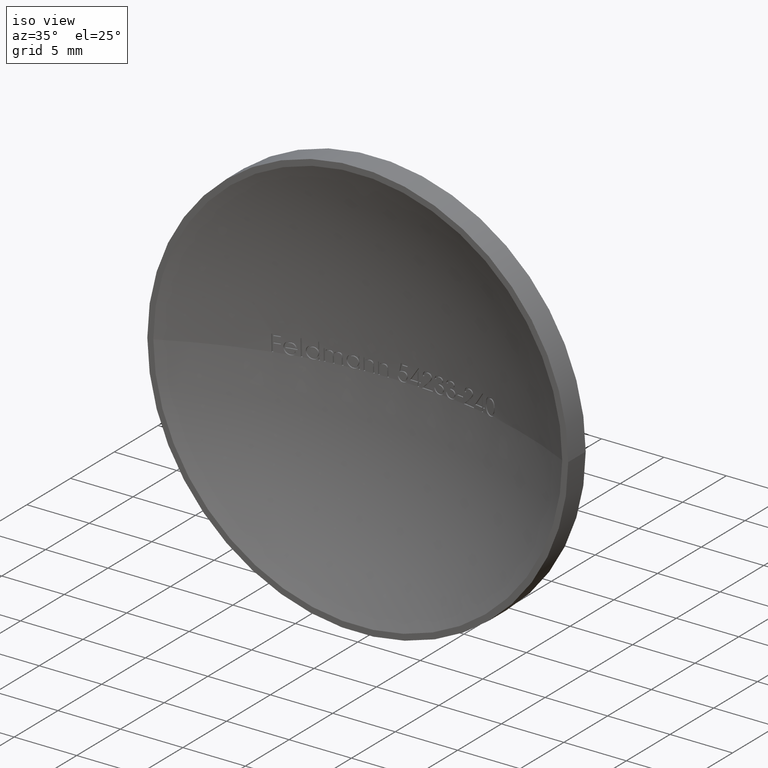
[diagram: clean part render]
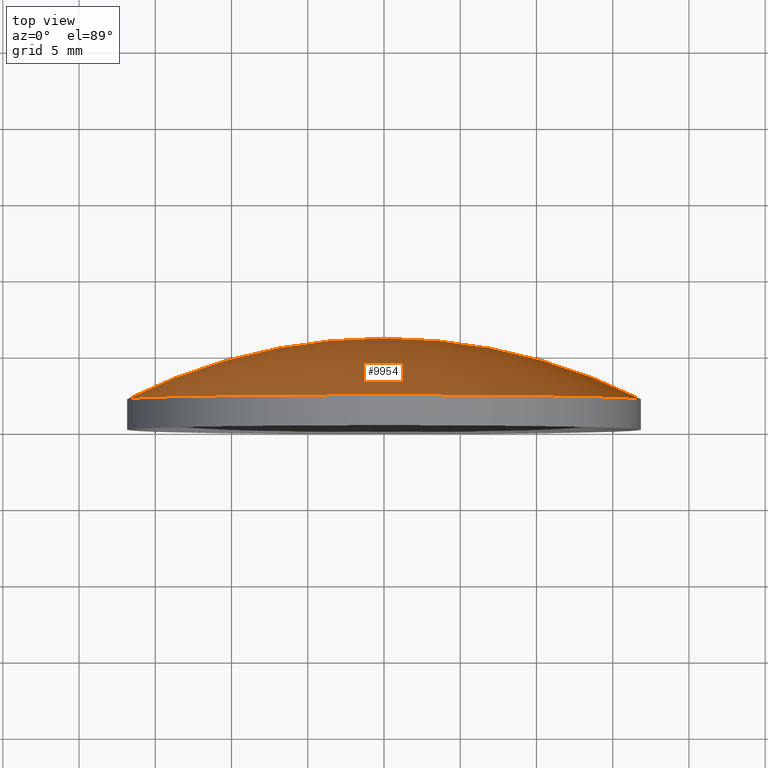
[diagram: tour spotlight — one face highlighted and labeled with its STEP entity id]
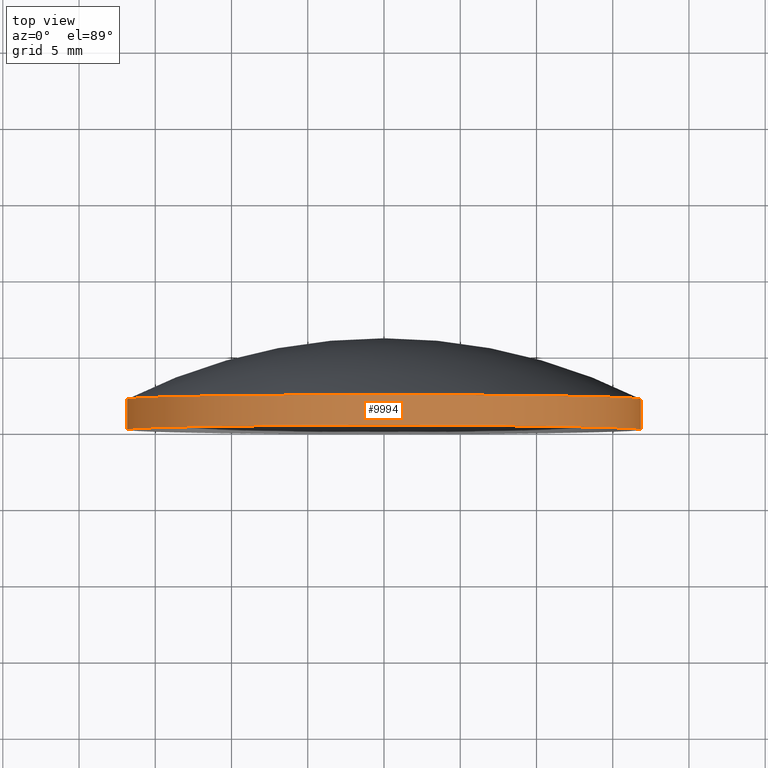
[diagram: tour spotlight — one face highlighted and labeled with its STEP entity id]
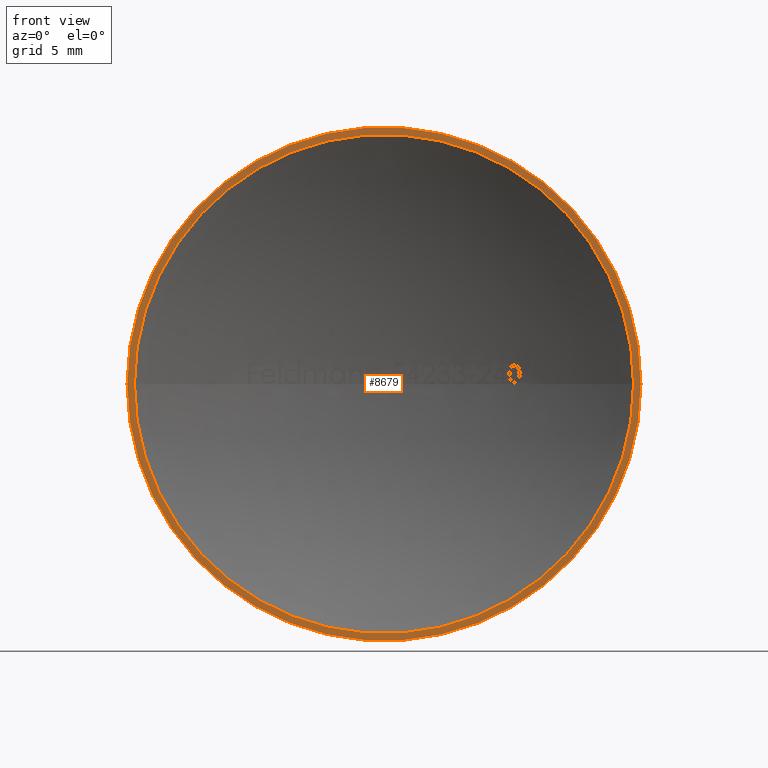
[diagram: tour spotlight — one face highlighted and labeled with its STEP entity id]
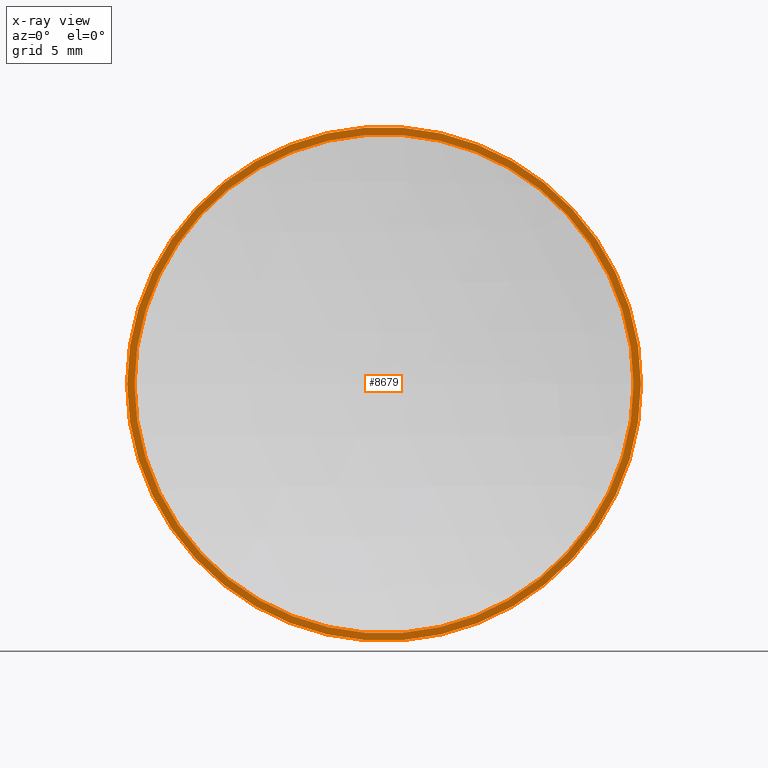
[diagram: x-ray of the same camera — body ghosted, this tour face saturated]
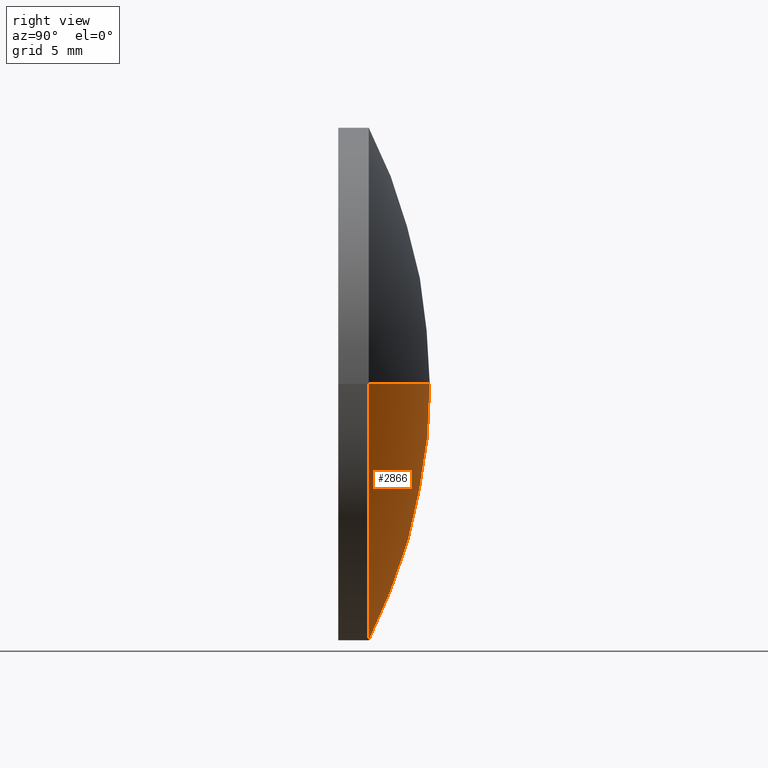
[diagram: tour spotlight — one face highlighted and labeled with its STEP entity id]
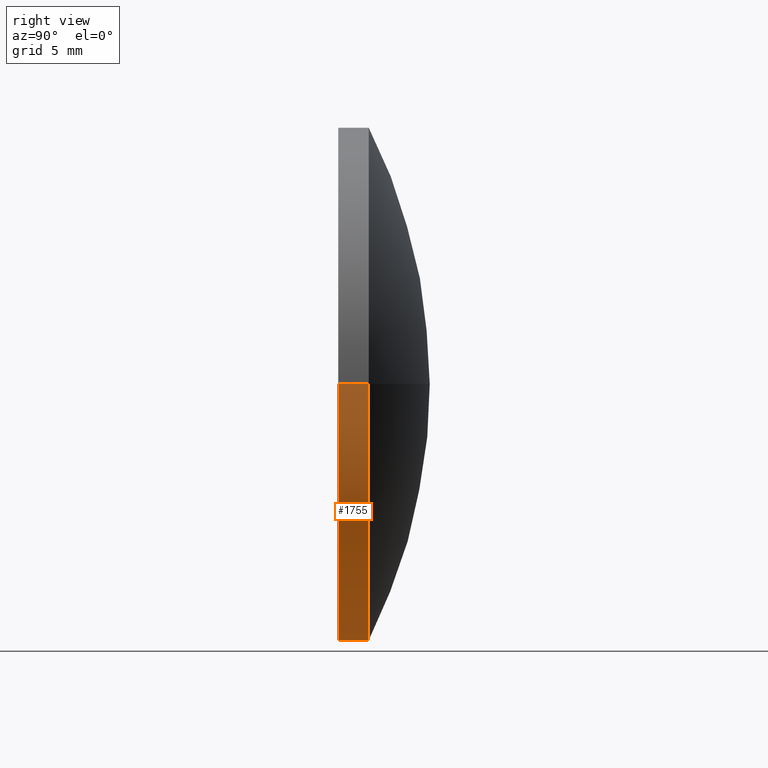
[diagram: tour spotlight — one face highlighted and labeled with its STEP entity id]
A machine part: a face-by-face anatomy tour. The part has 256 B-rep faces; the first image is the clean iso view, then the 5 largest visible faces are spotlighted one at a time (largest first), each with its STEP entity span.

Face 1 — top view, entity #9954. In plain terms, the highlighted spherical surface has radius 37.4903 mm.
Definition (entity closure, byte-faithful):
#810 = CARTESIAN_POINT ( 'NONE',  ( 16.84999999999999100, 1.999999999999994900, 0.0000000000000000000 ) ) ;
#1555 = ORIENTED_EDGE ( 'NONE', *, *, #8923, .T. ) ;
#1677 = CARTESIAN_POINT ( 'NONE',  ( -1.167220775306714700E-014, 2.000000000000093300, 0.0000000000000000000 ) ) ;
#2077 = CARTESIAN_POINT ( 'NONE',  ( 1.167220775306751800E-014, -31.49031249999995200, 0.0000000000000000000 ) ) ;
#3038 = CARTESIAN_POINT ( 'NONE',  ( 1.167220775306751800E-014, -31.49031249999995200, 0.0000000000000000000 ) ) ;
#3289 = ORIENTED_EDGE ( 'NONE', *, *, #5535, .F. ) ;
#3461 = CARTESIAN_POINT ( 'NONE',  ( 2.327651854268892700E-013, 5.999999999999991100, 0.0000000000000000000 ) ) ;
#3491 = AXIS2_PLACEMENT_3D ( 'NONE', #3038, #8222, #4132 ) ;
#3708 = AXIS2_PLACEMENT_3D ( 'NONE', #2077, #9447, #11603 ) ;
#4132 = DIRECTION ( 'NONE',  ( -1.000000000000000000, 0.0000000000000000000, 0.0000000000000000000 ) ) ;
#4885 = AXIS2_PLACEMENT_3D ( 'NONE', #1677, #10043, #11104 ) ;
#5180 = DIRECTION ( 'NONE',  ( 1.000000000000000000, 0.0000000000000000000, -1.224646799147353000E-016 ) ) ;
#5447 = VERTEX_POINT ( 'NONE', #6665 ) ;
#5535 = EDGE_CURVE ( 'NONE', #9889, #5447, #8528, .T. ) ;
#5642 = EDGE_CURVE ( 'NONE', #8751, #9889, #9184, .T. ) ;
#6665 = CARTESIAN_POINT ( 'NONE',  ( -16.85000000000001200, 2.000000000000191800, 2.063529856563290600E-015 ) ) ;
#8222 = DIRECTION ( 'NONE',  ( 0.0000000000000000000, 0.0000000000000000000, -1.000000000000000000 ) ) ;
#8309 = DIRECTION ( 'NONE',  ( 1.224646799147353200E-016, -7.147165931888596700E-031, 1.000000000000000000 ) ) ;
#8528 = CIRCLE ( 'NONE', #4885, 16.85000000000000100 ) ;
#8751 = VERTEX_POINT ( 'NONE', #3461 ) ;
#8923 = EDGE_CURVE ( 'NONE', #8751, #5447, #9144, .T. ) ;
#9144 = CIRCLE ( 'NONE', #11959, 37.49031249999994500 ) ;
#9184 = CIRCLE ( 'NONE', #3491, 37.49031249999994500 ) ;
#9447 = DIRECTION ( 'NONE',  ( -0.0000000000000000000, 0.0000000000000000000, 1.000000000000000000 ) ) ;
#9889 = VERTEX_POINT ( 'NONE', #810 ) ;
#9954 = ADVANCED_FACE ( 'NONE', ( #12576 ), #12895, .T. ) ;
#10043 = DIRECTION ( 'NONE',  ( -5.836103876533815000E-015, -1.000000000000000000, -0.0000000000000000000 ) ) ;
#11104 = DIRECTION ( 'NONE',  ( 1.000000000000000000, -5.842466306331382200E-015, 0.0000000000000000000 ) ) ;
#11398 = CARTESIAN_POINT ( 'NONE',  ( 1.167220775306751800E-014, -31.49031249999995200, 0.0000000000000000000 ) ) ;
#11603 = DIRECTION ( 'NONE',  ( 1.000000000000000000, -5.922719500538483000E-015, 0.0000000000000000000 ) ) ;
#11959 = AXIS2_PLACEMENT_3D ( 'NONE', #11398, #8309, #5180 ) ;
#12576 = FACE_OUTER_BOUND ( 'NONE', #13234, .T. ) ;
#12895 = SPHERICAL_SURFACE ( 'NONE', #3708, 37.49031249999994500 ) ;
#13231 = ORIENTED_EDGE ( 'NONE', *, *, #5642, .F. ) ;
#13234 = EDGE_LOOP ( 'NONE', ( #13231, #1555, #3289 ) ) ;

Face 2 — top view, entity #9994. In plain terms, the highlighted cylindrical surface (partial cylindrical patch) has radius 16.85 mm, axis along (-0, -1, -0).
Definition (entity closure, byte-faithful):
#810 = CARTESIAN_POINT ( 'NONE',  ( 16.84999999999999100, 1.999999999999994900, 0.0000000000000000000 ) ) ;
#1145 = CIRCLE ( 'NONE', #13248, 16.85000000000002300 ) ;
#1270 = DIRECTION ( 'NONE',  ( -5.836103876533815000E-015, -1.000000000000000000, -0.0000000000000000000 ) ) ;
#1677 = CARTESIAN_POINT ( 'NONE',  ( -1.167220775306714700E-014, 2.000000000000093300, 0.0000000000000000000 ) ) ;
#1882 = CARTESIAN_POINT ( 'NONE',  ( 16.85000000000001200, 3.999999999999912500, 0.0000000000000000000 ) ) ;
#1976 = EDGE_CURVE ( 'NONE', #9889, #9375, #7722, .T. ) ;
#2393 = CARTESIAN_POINT ( 'NONE',  ( 0.0000000000000000000, 4.000000000000010700, 0.0000000000000000000 ) ) ;
#2754 = ORIENTED_EDGE ( 'NONE', *, *, #7227, .F. ) ;
#2757 = VECTOR ( 'NONE', #1270, 1000.000000000000000 ) ;
#2783 = EDGE_LOOP ( 'NONE', ( #2856, #4858, #2754, #3403 ) ) ;
#2856 = ORIENTED_EDGE ( 'NONE', *, *, #5535, .T. ) ;
#3296 = DIRECTION ( 'NONE',  ( -5.836103876533815000E-015, -1.000000000000000000, -0.0000000000000000000 ) ) ;
#3403 = ORIENTED_EDGE ( 'NONE', *, *, #1976, .F. ) ;
#3875 = FACE_OUTER_BOUND ( 'NONE', #2783, .T. ) ;
#4858 = ORIENTED_EDGE ( 'NONE', *, *, #9671, .T. ) ;
#4885 = AXIS2_PLACEMENT_3D ( 'NONE', #1677, #10043, #11104 ) ;
#5447 = VERTEX_POINT ( 'NONE', #6665 ) ;
#5522 = LINE ( 'NONE', #8669, #2757 ) ;
#5535 = EDGE_CURVE ( 'NONE', #9889, #5447, #8528, .T. ) ;
#6106 = CARTESIAN_POINT ( 'NONE',  ( 16.84999999999999800, -4.663282616847321200E-015, 0.0000000000000000000 ) ) ;
#6665 = CARTESIAN_POINT ( 'NONE',  ( -16.85000000000001200, 2.000000000000191800, 2.063529856563290600E-015 ) ) ;
#7027 = VERTEX_POINT ( 'NONE', #8850 ) ;
#7057 = CARTESIAN_POINT ( 'NONE',  ( -2.334441550613477400E-014, 9.367506770274758300E-014, 0.0000000000000000000 ) ) ;
#7227 = EDGE_CURVE ( 'NONE', #9375, #7027, #1145, .T. ) ;
#7722 = LINE ( 'NONE', #1882, #10684 ) ;
#7969 = DIRECTION ( 'NONE',  ( -5.836103876533815000E-015, -1.000000000000000000, -0.0000000000000000000 ) ) ;
#8099 = AXIS2_PLACEMENT_3D ( 'NONE', #2393, #3296, #11731 ) ;
#8528 = CIRCLE ( 'NONE', #4885, 16.85000000000000100 ) ;
#8669 = CARTESIAN_POINT ( 'NONE',  ( -16.85000000000001200, 4.000000000000108400, 2.063529856563291400E-015 ) ) ;
#8850 = CARTESIAN_POINT ( 'NONE',  ( -16.85000000000004400, 1.920134180223424900E-013, 2.063529856563293800E-015 ) ) ;
#9375 = VERTEX_POINT ( 'NONE', #6106 ) ;
#9671 = EDGE_CURVE ( 'NONE', #5447, #7027, #5522, .T. ) ;
#9889 = VERTEX_POINT ( 'NONE', #810 ) ;
#9994 = ADVANCED_FACE ( 'NONE', ( #3875 ), #12243, .T. ) ;
#10043 = DIRECTION ( 'NONE',  ( -5.836103876533815000E-015, -1.000000000000000000, -0.0000000000000000000 ) ) ;
#10684 = VECTOR ( 'NONE', #7969, 1000.000000000000000 ) ;
#11104 = DIRECTION ( 'NONE',  ( 1.000000000000000000, -5.842466306331382200E-015, 0.0000000000000000000 ) ) ;
#11363 = DIRECTION ( 'NONE',  ( 1.000000000000000000, -5.836103876533814200E-015, 0.0000000000000000000 ) ) ;
#11731 = DIRECTION ( 'NONE',  ( 1.000000000000000000, -5.816728569299081700E-015, 0.0000000000000000000 ) ) ;
#12243 = CYLINDRICAL_SURFACE ( 'NONE', #8099, 16.85000000000001200 ) ;
#12319 = DIRECTION ( 'NONE',  ( -5.836103876533815000E-015, -1.000000000000000000, -0.0000000000000000000 ) ) ;
#13248 = AXIS2_PLACEMENT_3D ( 'NONE', #7057, #12319, #11363 ) ;

Face 3 — front view, entity #8679. An x-ray twin of the same camera follows (body ghosted, this face saturated) — the face is partly hidden behind the body. In plain terms, the highlighted planar face has unit normal (-0, -1, 0).
Definition (entity closure, byte-faithful):
#254 = DIRECTION ( 'NONE',  ( 1.000000000000000000, -5.836103876533815000E-015, 0.0000000000000000000 ) ) ;
#321 = AXIS2_PLACEMENT_3D ( 'NONE', #3908, #10246, #3039 ) ;
#933 = VERTEX_POINT ( 'NONE', #10305 ) ;
#1055 = PLANE ( 'NONE',  #1873 ) ;
#1145 = CIRCLE ( 'NONE', #13248, 16.85000000000002300 ) ;
#1459 = FACE_OUTER_BOUND ( 'NONE', #10537, .T. ) ;
#1558 = CARTESIAN_POINT ( 'NONE',  ( -16.36833833961147600, 1.926130716621757600E-013, 0.0000000000000000000 ) ) ;
#1701 = AXIS2_PLACEMENT_3D ( 'NONE', #12073, #5794, #5834 ) ;
#1873 = AXIS2_PLACEMENT_3D ( 'NONE', #5616, #3416, #7398 ) ;
#2202 = EDGE_CURVE ( 'NONE', #933, #6880, #5250, .T. ) ;
#2267 = CIRCLE ( 'NONE', #1701, 16.85000000000002300 ) ;
#3039 = DIRECTION ( 'NONE',  ( 1.000000000000000000, -5.836103876533815000E-015, 0.0000000000000000000 ) ) ;
#3416 = DIRECTION ( 'NONE',  ( -5.836103876533815000E-015, -1.000000000000000000, 0.0000000000000000000 ) ) ;
#3738 = EDGE_LOOP ( 'NONE', ( #5304, #5422 ) ) ;
#3908 = CARTESIAN_POINT ( 'NONE',  ( -2.334441550613476100E-014, 9.540979117872439000E-014, 0.0000000000000000000 ) ) ;
#5250 = CIRCLE ( 'NONE', #321, 16.36833833961167200 ) ;
#5304 = ORIENTED_EDGE ( 'NONE', *, *, #11372, .F. ) ;
#5422 = ORIENTED_EDGE ( 'NONE', *, *, #2202, .F. ) ;
#5500 = ORIENTED_EDGE ( 'NONE', *, *, #9136, .T. ) ;
#5616 = CARTESIAN_POINT ( 'NONE',  ( 16.84999999999999800, -3.484351683237712300E-015, 0.0000000000000000000 ) ) ;
#5794 = DIRECTION ( 'NONE',  ( -5.836103876533815000E-015, -1.000000000000000000, -0.0000000000000000000 ) ) ;
#5834 = DIRECTION ( 'NONE',  ( 1.000000000000000000, -5.836103876533814200E-015, 0.0000000000000000000 ) ) ;
#6106 = CARTESIAN_POINT ( 'NONE',  ( 16.84999999999999800, -4.663282616847321200E-015, 0.0000000000000000000 ) ) ;
#6880 = VERTEX_POINT ( 'NONE', #1558 ) ;
#7027 = VERTEX_POINT ( 'NONE', #8850 ) ;
#7057 = CARTESIAN_POINT ( 'NONE',  ( -2.334441550613477400E-014, 9.367506770274758300E-014, 0.0000000000000000000 ) ) ;
#7227 = EDGE_CURVE ( 'NONE', #9375, #7027, #1145, .T. ) ;
#7398 = DIRECTION ( 'NONE',  ( 1.000000000000000000, -5.836103876533815000E-015, 0.0000000000000000000 ) ) ;
#7576 = AXIS2_PLACEMENT_3D ( 'NONE', #12871, #11836, #254 ) ;
#8184 = ORIENTED_EDGE ( 'NONE', *, *, #7227, .T. ) ;
#8679 = ADVANCED_FACE ( 'NONE', ( #1459, #9626 ), #1055, .T. ) ;
#8850 = CARTESIAN_POINT ( 'NONE',  ( -16.85000000000004400, 1.920134180223424900E-013, 2.063529856563293800E-015 ) ) ;
#9136 = EDGE_CURVE ( 'NONE', #7027, #9375, #2267, .T. ) ;
#9375 = VERTEX_POINT ( 'NONE', #6106 ) ;
#9626 = FACE_BOUND ( 'NONE', #3738, .T. ) ;
#10246 = DIRECTION ( 'NONE',  ( -5.836103876533815000E-015, -1.000000000000000000, -0.0000000000000000000 ) ) ;
#10305 = CARTESIAN_POINT ( 'NONE',  ( 16.36833833961164700, -5.876582875017628900E-017, -2.004543315496607100E-015 ) ) ;
#10537 = EDGE_LOOP ( 'NONE', ( #8184, #5500 ) ) ;
#11102 = CIRCLE ( 'NONE', #7576, 16.36833833961167200 ) ;
#11363 = DIRECTION ( 'NONE',  ( 1.000000000000000000, -5.836103876533814200E-015, 0.0000000000000000000 ) ) ;
#11372 = EDGE_CURVE ( 'NONE', #6880, #933, #11102, .T. ) ;
#11836 = DIRECTION ( 'NONE',  ( -5.836103876533815000E-015, -1.000000000000000000, -0.0000000000000000000 ) ) ;
#12073 = CARTESIAN_POINT ( 'NONE',  ( -2.334441550613477400E-014, 9.367506770274758300E-014, 0.0000000000000000000 ) ) ;
#12319 = DIRECTION ( 'NONE',  ( -5.836103876533815000E-015, -1.000000000000000000, -0.0000000000000000000 ) ) ;
#12871 = CARTESIAN_POINT ( 'NONE',  ( -2.334441550613476100E-014, 9.540979117872439000E-014, 0.0000000000000000000 ) ) ;
#13248 = AXIS2_PLACEMENT_3D ( 'NONE', #7057, #12319, #11363 ) ;

Face 4 — right view, entity #2866. In plain terms, the highlighted spherical surface has radius 37.4903 mm.
Definition (entity closure, byte-faithful):
#193 = EDGE_LOOP ( 'NONE', ( #12665, #5163, #12767 ) ) ;
#810 = CARTESIAN_POINT ( 'NONE',  ( 16.84999999999999100, 1.999999999999994900, 0.0000000000000000000 ) ) ;
#1091 = EDGE_CURVE ( 'NONE', #5447, #9889, #2677, .T. ) ;
#2677 = CIRCLE ( 'NONE', #4944, 16.85000000000000100 ) ;
#2866 = ADVANCED_FACE ( 'NONE', ( #9680 ), #6911, .T. ) ;
#3038 = CARTESIAN_POINT ( 'NONE',  ( 1.167220775306751800E-014, -31.49031249999995200, 0.0000000000000000000 ) ) ;
#3461 = CARTESIAN_POINT ( 'NONE',  ( 2.327651854268892700E-013, 5.999999999999991100, 0.0000000000000000000 ) ) ;
#3491 = AXIS2_PLACEMENT_3D ( 'NONE', #3038, #8222, #4132 ) ;
#3727 = DIRECTION ( 'NONE',  ( -5.836103876533815000E-015, -1.000000000000000000, -0.0000000000000000000 ) ) ;
#4132 = DIRECTION ( 'NONE',  ( -1.000000000000000000, 0.0000000000000000000, 0.0000000000000000000 ) ) ;
#4928 = CARTESIAN_POINT ( 'NONE',  ( 1.167220775306751800E-014, -31.49031249999995200, 0.0000000000000000000 ) ) ;
#4944 = AXIS2_PLACEMENT_3D ( 'NONE', #10294, #3727, #5840 ) ;
#5163 = ORIENTED_EDGE ( 'NONE', *, *, #5642, .T. ) ;
#5180 = DIRECTION ( 'NONE',  ( 1.000000000000000000, 0.0000000000000000000, -1.224646799147353000E-016 ) ) ;
#5447 = VERTEX_POINT ( 'NONE', #6665 ) ;
#5642 = EDGE_CURVE ( 'NONE', #8751, #9889, #9184, .T. ) ;
#5840 = DIRECTION ( 'NONE',  ( 1.000000000000000000, -5.842466306331382200E-015, 0.0000000000000000000 ) ) ;
#6141 = DIRECTION ( 'NONE',  ( 1.000000000000000000, -5.922719500538483000E-015, 0.0000000000000000000 ) ) ;
#6665 = CARTESIAN_POINT ( 'NONE',  ( -16.85000000000001200, 2.000000000000191800, 2.063529856563290600E-015 ) ) ;
#6911 = SPHERICAL_SURFACE ( 'NONE', #7686, 37.49031249999994500 ) ;
#7686 = AXIS2_PLACEMENT_3D ( 'NONE', #4928, #8102, #6141 ) ;
#8102 = DIRECTION ( 'NONE',  ( -0.0000000000000000000, 0.0000000000000000000, 1.000000000000000000 ) ) ;
#8222 = DIRECTION ( 'NONE',  ( 0.0000000000000000000, 0.0000000000000000000, -1.000000000000000000 ) ) ;
#8309 = DIRECTION ( 'NONE',  ( 1.224646799147353200E-016, -7.147165931888596700E-031, 1.000000000000000000 ) ) ;
#8751 = VERTEX_POINT ( 'NONE', #3461 ) ;
#8923 = EDGE_CURVE ( 'NONE', #8751, #5447, #9144, .T. ) ;
#9144 = CIRCLE ( 'NONE', #11959, 37.49031249999994500 ) ;
#9184 = CIRCLE ( 'NONE', #3491, 37.49031249999994500 ) ;
#9680 = FACE_OUTER_BOUND ( 'NONE', #193, .T. ) ;
#9889 = VERTEX_POINT ( 'NONE', #810 ) ;
#10294 = CARTESIAN_POINT ( 'NONE',  ( -1.167220775306714700E-014, 2.000000000000093300, 0.0000000000000000000 ) ) ;
#11398 = CARTESIAN_POINT ( 'NONE',  ( 1.167220775306751800E-014, -31.49031249999995200, 0.0000000000000000000 ) ) ;
#11959 = AXIS2_PLACEMENT_3D ( 'NONE', #11398, #8309, #5180 ) ;
#12665 = ORIENTED_EDGE ( 'NONE', *, *, #8923, .F. ) ;
#12767 = ORIENTED_EDGE ( 'NONE', *, *, #1091, .F. ) ;

Face 5 — right view, entity #1755. In plain terms, the highlighted cylindrical surface (partial cylindrical patch) has radius 16.85 mm, axis along (-0, -1, -0).
Definition (entity closure, byte-faithful):
#810 = CARTESIAN_POINT ( 'NONE',  ( 16.84999999999999100, 1.999999999999994900, 0.0000000000000000000 ) ) ;
#1091 = EDGE_CURVE ( 'NONE', #5447, #9889, #2677, .T. ) ;
#1270 = DIRECTION ( 'NONE',  ( -5.836103876533815000E-015, -1.000000000000000000, -0.0000000000000000000 ) ) ;
#1701 = AXIS2_PLACEMENT_3D ( 'NONE', #12073, #5794, #5834 ) ;
#1755 = ADVANCED_FACE ( 'NONE', ( #3937 ), #8051, .T. ) ;
#1882 = CARTESIAN_POINT ( 'NONE',  ( 16.85000000000001200, 3.999999999999912500, 0.0000000000000000000 ) ) ;
#1976 = EDGE_CURVE ( 'NONE', #9889, #9375, #7722, .T. ) ;
#2267 = CIRCLE ( 'NONE', #1701, 16.85000000000002300 ) ;
#2677 = CIRCLE ( 'NONE', #4944, 16.85000000000000100 ) ;
#2757 = VECTOR ( 'NONE', #1270, 1000.000000000000000 ) ;
#3420 = ORIENTED_EDGE ( 'NONE', *, *, #1091, .T. ) ;
#3727 = DIRECTION ( 'NONE',  ( -5.836103876533815000E-015, -1.000000000000000000, -0.0000000000000000000 ) ) ;
#3937 = FACE_OUTER_BOUND ( 'NONE', #6268, .T. ) ;
#4260 = ORIENTED_EDGE ( 'NONE', *, *, #1976, .T. ) ;
#4386 = DIRECTION ( 'NONE',  ( -5.836103876533815000E-015, -1.000000000000000000, -0.0000000000000000000 ) ) ;
#4483 = DIRECTION ( 'NONE',  ( 1.000000000000000000, -5.816728569299081700E-015, 0.0000000000000000000 ) ) ;
#4893 = ORIENTED_EDGE ( 'NONE', *, *, #9671, .F. ) ;
#4944 = AXIS2_PLACEMENT_3D ( 'NONE', #10294, #3727, #5840 ) ;
#5447 = VERTEX_POINT ( 'NONE', #6665 ) ;
#5522 = LINE ( 'NONE', #8669, #2757 ) ;
#5794 = DIRECTION ( 'NONE',  ( -5.836103876533815000E-015, -1.000000000000000000, -0.0000000000000000000 ) ) ;
#5834 = DIRECTION ( 'NONE',  ( 1.000000000000000000, -5.836103876533814200E-015, 0.0000000000000000000 ) ) ;
#5840 = DIRECTION ( 'NONE',  ( 1.000000000000000000, -5.842466306331382200E-015, 0.0000000000000000000 ) ) ;
#6106 = CARTESIAN_POINT ( 'NONE',  ( 16.84999999999999800, -4.663282616847321200E-015, 0.0000000000000000000 ) ) ;
#6268 = EDGE_LOOP ( 'NONE', ( #4893, #3420, #4260, #13411 ) ) ;
#6665 = CARTESIAN_POINT ( 'NONE',  ( -16.85000000000001200, 2.000000000000191800, 2.063529856563290600E-015 ) ) ;
#7027 = VERTEX_POINT ( 'NONE', #8850 ) ;
#7509 = CARTESIAN_POINT ( 'NONE',  ( 0.0000000000000000000, 4.000000000000010700, 0.0000000000000000000 ) ) ;
#7722 = LINE ( 'NONE', #1882, #10684 ) ;
#7969 = DIRECTION ( 'NONE',  ( -5.836103876533815000E-015, -1.000000000000000000, -0.0000000000000000000 ) ) ;
#8051 = CYLINDRICAL_SURFACE ( 'NONE', #12242, 16.85000000000001200 ) ;
#8669 = CARTESIAN_POINT ( 'NONE',  ( -16.85000000000001200, 4.000000000000108400, 2.063529856563291400E-015 ) ) ;
#8850 = CARTESIAN_POINT ( 'NONE',  ( -16.85000000000004400, 1.920134180223424900E-013, 2.063529856563293800E-015 ) ) ;
#9136 = EDGE_CURVE ( 'NONE', #7027, #9375, #2267, .T. ) ;
#9375 = VERTEX_POINT ( 'NONE', #6106 ) ;
#9671 = EDGE_CURVE ( 'NONE', #5447, #7027, #5522, .T. ) ;
#9889 = VERTEX_POINT ( 'NONE', #810 ) ;
#10294 = CARTESIAN_POINT ( 'NONE',  ( -1.167220775306714700E-014, 2.000000000000093300, 0.0000000000000000000 ) ) ;
#10684 = VECTOR ( 'NONE', #7969, 1000.000000000000000 ) ;
#12073 = CARTESIAN_POINT ( 'NONE',  ( -2.334441550613477400E-014, 9.367506770274758300E-014, 0.0000000000000000000 ) ) ;
#12242 = AXIS2_PLACEMENT_3D ( 'NONE', #7509, #4386, #4483 ) ;
#13411 = ORIENTED_EDGE ( 'NONE', *, *, #9136, .F. ) ;